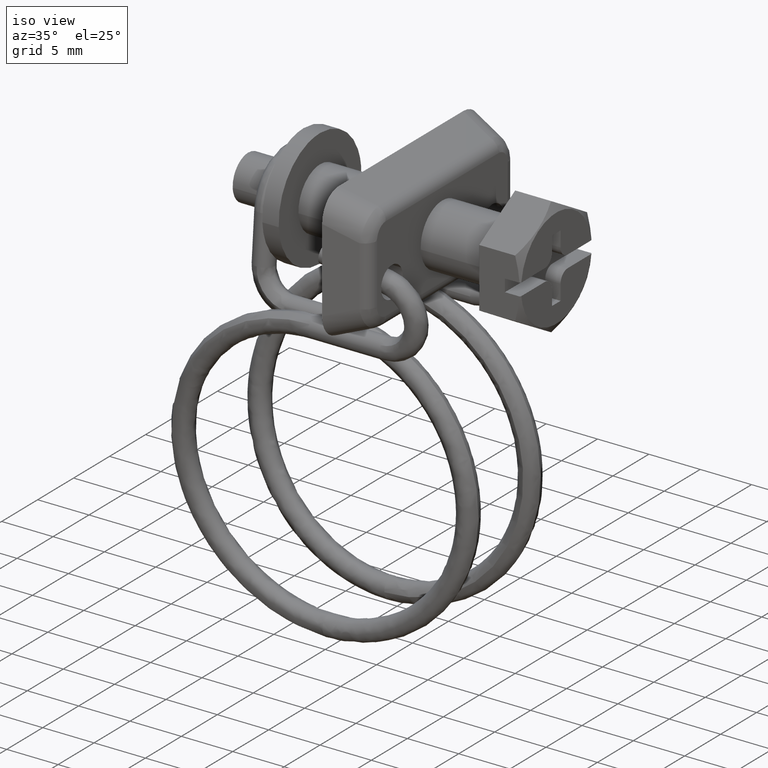
[diagram: clean part render]
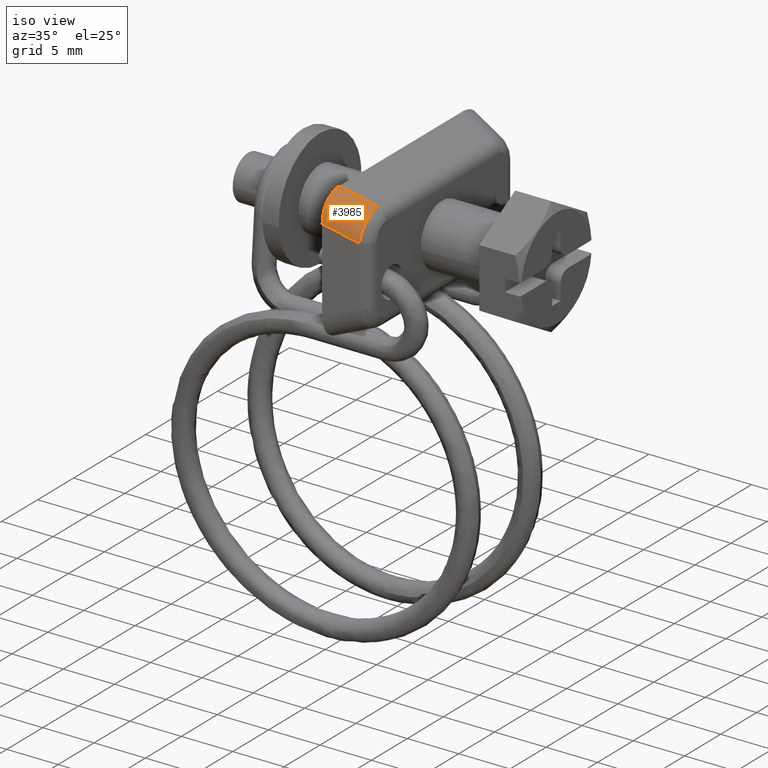
[diagram: same view with one face highlighted and labeled with its STEP entity id]
A machine part, iso view. The second image highlights one B-rep face of the part: STEP entity #3985.
In plain terms, the highlighted face is a freeform B-spline surface patch.
Its self-contained STEP definition (entity closure, byte-faithful):
#3596=CARTESIAN_POINT('',(-35.478652022990950,-7.837173833659441,5.291994008621720));
#3597=VERTEX_POINT('',#3596);
#3643=CARTESIAN_POINT('',(-35.608957165478401,-10.227239053049720,2.898234503023635));
#3644=VERTEX_POINT('',#3643);
#3711=CARTESIAN_POINT('',(-35.608957165478429,-10.227239053049740,2.898234503023632));
#3712=CARTESIAN_POINT('',(-35.243515377671017,-10.135878577922087,5.203817803123340));
#3713=CARTESIAN_POINT('',(-35.478652022991078,-7.837173833659464,5.291994008621752));
#3721=(BOUNDED_CURVE()B_SPLINE_CURVE(2,(#3711,#3712,#3713),.UNSPECIFIED.,.F.,.U.)CURVE()GEOMETRIC_REPRESENTATION_ITEM()QUASI_UNIFORM_CURVE()RATIONAL_B_SPLINE_CURVE((1.0,0.736600277350816,1.0))REPRESENTATION_ITEM(''));
#3722=EDGE_CURVE('',#3644,#3597,#3721,.T.);
#3941=CARTESIAN_POINT('',(-39.243477035759447,-11.133636633113319,4.150265579266426));
#3942=CARTESIAN_POINT('',(-35.554004327965842,-10.211268171705820,2.766713886503696));
#3943=CARTESIAN_POINT('',(-38.369450208016744,-11.024930341632237,6.553475664619659));
#3944=CARTESIAN_POINT('',(-34.679977500223110,-10.102561880224734,5.169923971856930));
#3945=CARTESIAN_POINT('',(-38.974757862937331,-8.538393442855284,6.597013713270017));
#3946=CARTESIAN_POINT('',(-35.285285155143711,-7.616024981447777,5.213462020507287));
#3954=(BOUNDED_SURFACE()B_SPLINE_SURFACE(1,2,((#3941,#3943,#3945),(#3942,#3944,#3946)),.UNSPECIFIED.,.F.,.F.,.U.)B_SPLINE_SURFACE_WITH_KNOTS((2,2),(3,3),(0.0,4.046873821445374),(0.0,4.211209713669587),.UNSPECIFIED.)GEOMETRIC_REPRESENTATION_ITEM()RATIONAL_B_SPLINE_SURFACE(((1.0,0.697067526700139,0.995219704173375),(1.0,0.697067526700139,0.995219704173375)))REPRESENTATION_ITEM('')SURFACE());
#3955=CARTESIAN_POINT('',(-38.700000000000003,-11.0,4.057375086194185));
#3956=VERTEX_POINT('',#3955);
#3957=CARTESIAN_POINT('',(-35.608957165478401,-10.227239053049720,2.898234503023635));
#3958=CARTESIAN_POINT('',(-38.700000000000003,-11.0,4.057375086194185));
#3959=QUASI_UNIFORM_CURVE('',1,(#3957,#3958),.UNSPECIFIED.,.F.,.U.);
#3960=EDGE_CURVE('',#3644,#3956,#3959,.T.);
#3961=ORIENTED_EDGE('',*,*,#3960,.F.);
#3962=ORIENTED_EDGE('',*,*,#3722,.T.);
#3963=CARTESIAN_POINT('',(-38.700000000000003,-8.642511158470031,6.500000000000110));
#3964=VERTEX_POINT('',#3963);
#3965=CARTESIAN_POINT('',(-38.700000000000003,-8.642511158470031,6.500000000000110));
#3966=CARTESIAN_POINT('',(-35.478652022990950,-7.837173833659441,5.291994008621720));
#3967=QUASI_UNIFORM_CURVE('',1,(#3965,#3966),.UNSPECIFIED.,.F.,.U.);
#3968=EDGE_CURVE('',#3964,#3597,#3967,.T.);
#3969=ORIENTED_EDGE('',*,*,#3968,.F.);
#3970=CARTESIAN_POINT('',(-38.700000000000003,-11.0,4.057375086194185));
#3971=CARTESIAN_POINT('',(-38.700000000000003,-10.999999223404537,6.499998007051939));
#3972=CARTESIAN_POINT('',(-38.700000000000003,-8.642511158470031,6.500000000000110));
#3980=(BOUNDED_CURVE()B_SPLINE_CURVE(2,(#3970,#3971,#3972),.UNSPECIFIED.,.F.,.U.)CURVE()GEOMETRIC_REPRESENTATION_ITEM()QUASI_UNIFORM_CURVE()RATIONAL_B_SPLINE_CURVE((1.0,0.736600485733960,1.0))REPRESENTATION_ITEM(''));
#3981=EDGE_CURVE('',#3956,#3964,#3980,.T.);
#3982=ORIENTED_EDGE('',*,*,#3981,.F.);
#3983=EDGE_LOOP('',(#3961,#3962,#3969,#3982));
#3984=FACE_OUTER_BOUND('',#3983,.T.);
#3985=ADVANCED_FACE('',(#3984),#3954,.T.);